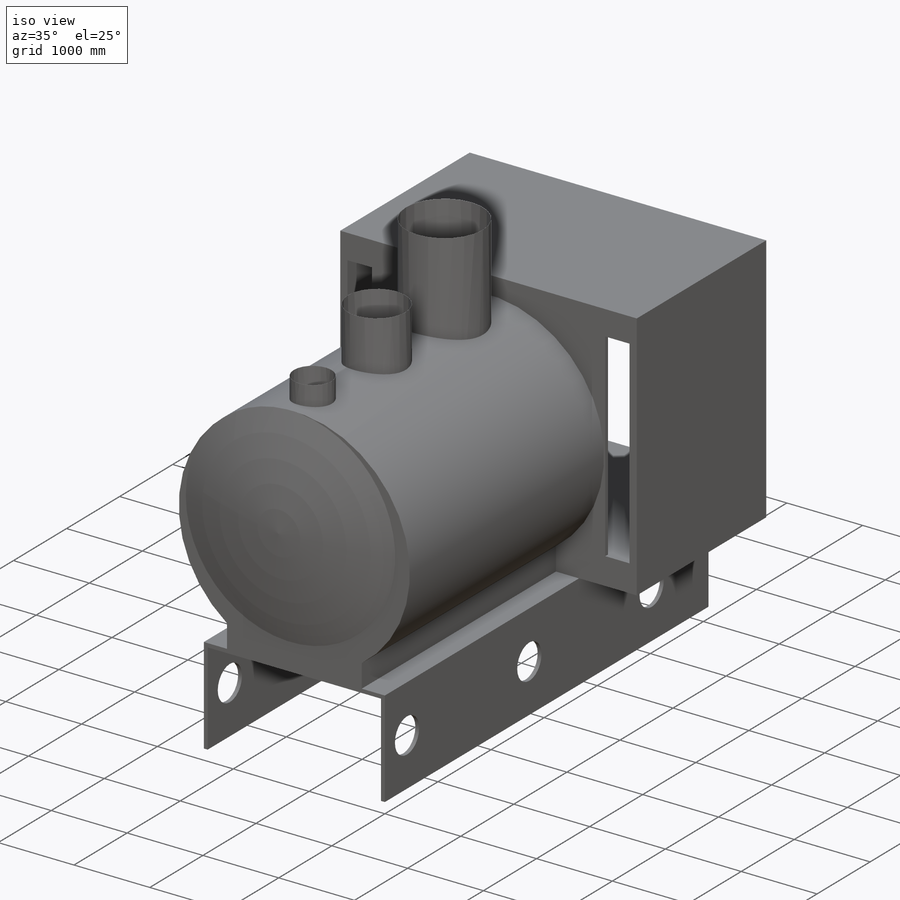
[diagram: iso view]
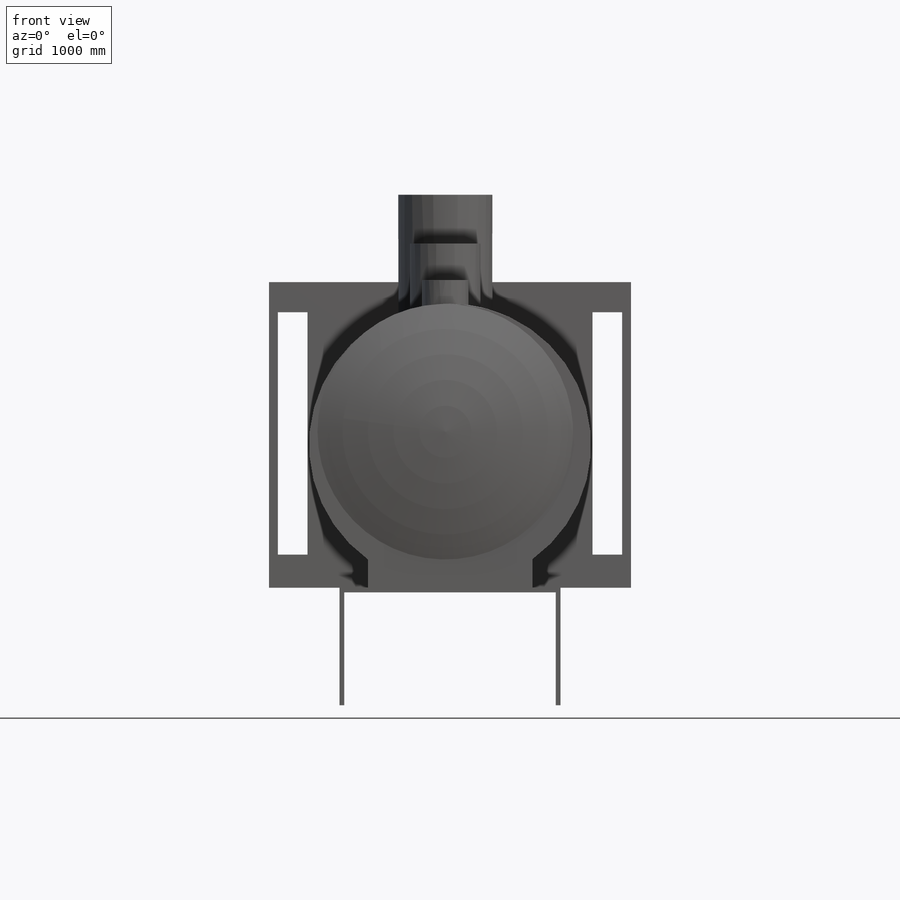
[diagram: front view]
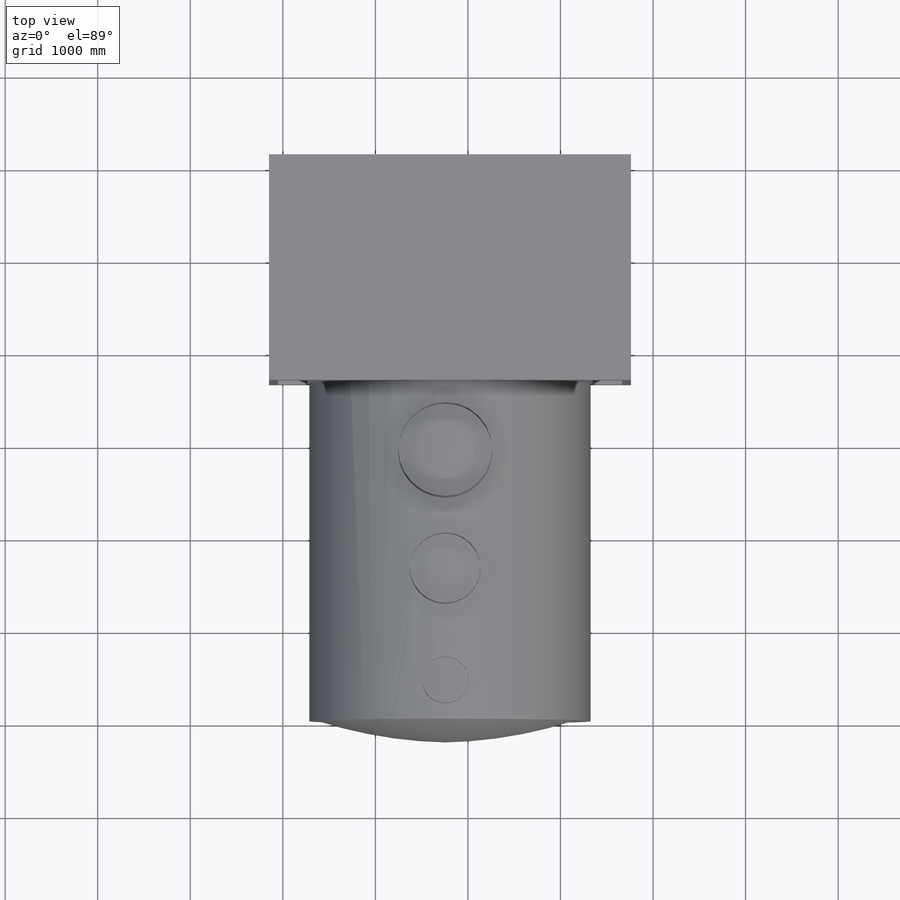
[diagram: top view]
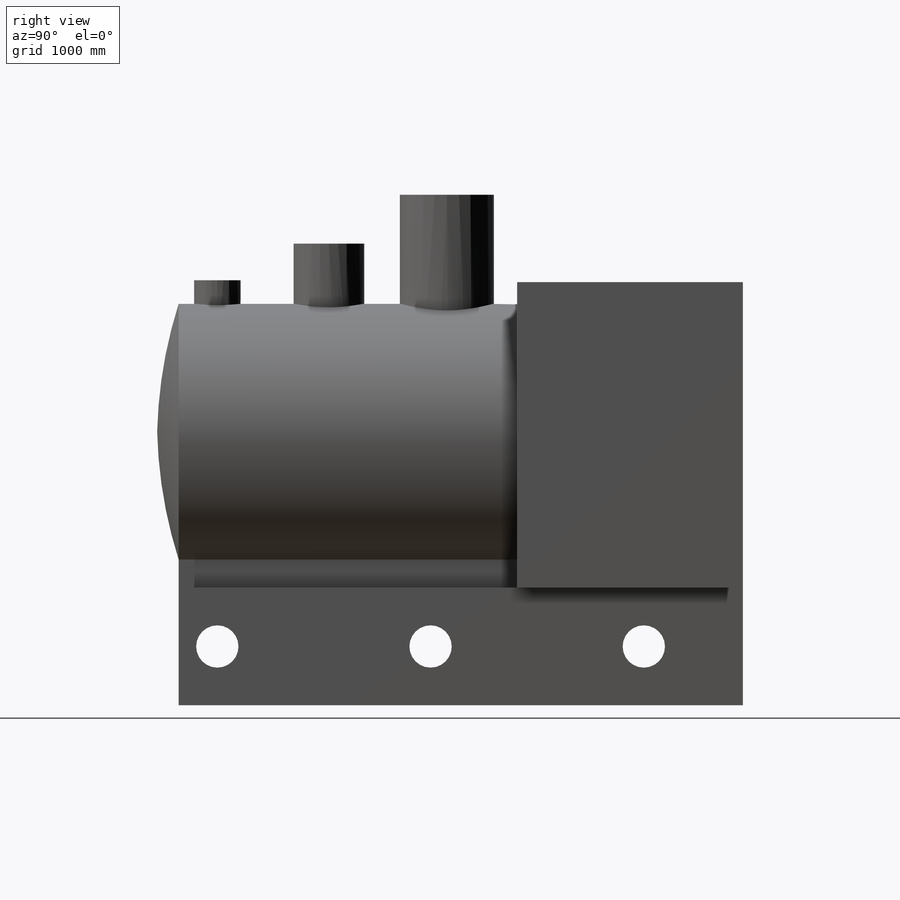
[diagram: right view]
SOLIDWORKS PART (.sldprt)
format: sldprt  version: not decoded by parser v0  size: 376,320 bytes
history: native  units: mm
features: sketch x9, extrude x5, cut_extrude x2, material x1, plane x1 (+12 scaffold rows collapsed)
feature tree (30):
  scaffold x12  (default folders/planes/origin — collapsed)
  material  "Material <not specified>"
  sketch  "Sketch1"  dims[c1.D7=1524.0mm c1.D1=50.8mm c1.D2=50.8mm c1.D3=50.8mm c1.D4=2286.0mm c1.D5=1778.0mm c1.D6=762.0mm c1.D8=304.8mm c1.D9=~184.877321mm c1.D10=~184.877321mm c2.D9=1219.2mm]
  extrude  "Boss-Extrude3"  Depth=3657.6mm
  sketch  "Sketch2"  dims[D1=762.0mm D2=3302.0mm D3=3080.33mm D4=320.0mm D5=320.0mm]
  extrude  "Boss-Extrude4"  Depth=2438.4mm
  sketch  "Sketch4"
  cut_extrude  "Cut-Extrude1"  Depth=2387.6mm
  sketch  "Sketch5"  dims[c1.D1=457.2mm c1.D2=457.2mm c1.D3=457.2mm c2.D2=2304.0mm c2.D3=2304.0mm]
  sketch  "Sketch6"
  cut_extrude  "Cut-Extrude2"  Depth=4484.116mm
  plane  "Plane3"  Offset=1143mm
  sketch  "Sketch9"  dims[c1.D1=254.0mm c1.D2=970.788mm c2.D1=360.0deg c2.D3=2.54mm c2.D4=2.54mm c2.D7=0.0mm]
  sketch  "Sketch10"  dims[D1=762.0mm]
  extrude  "Revolve-Thin3"  Depth=2.54mm
  sketch  "Sketch11"  dims[D1=508.0mm]
  extrude  "Revolve-Thin4"  Depth=2.54mm
  sketch  "Sketch13"
  extrude  "Revolve-Thin5"  Depth=2.54mm
decode coverage: 13 of 16 modeling features carry decoded parameters
note: ~ marks probable driven/reference dimensions
note: suppression state not decoded; provenance and decode notes live in map.json
